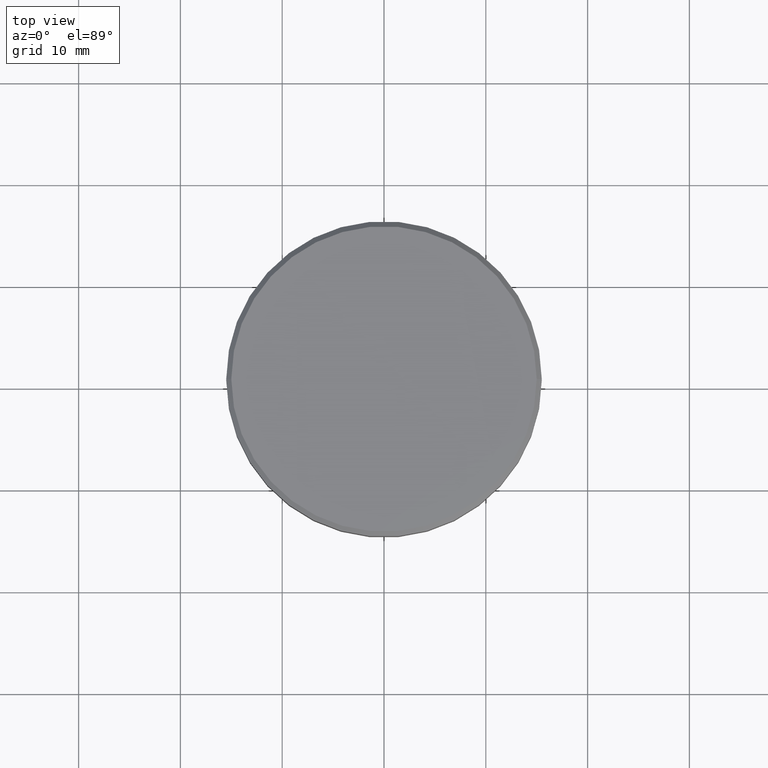
[diagram: clean part render]
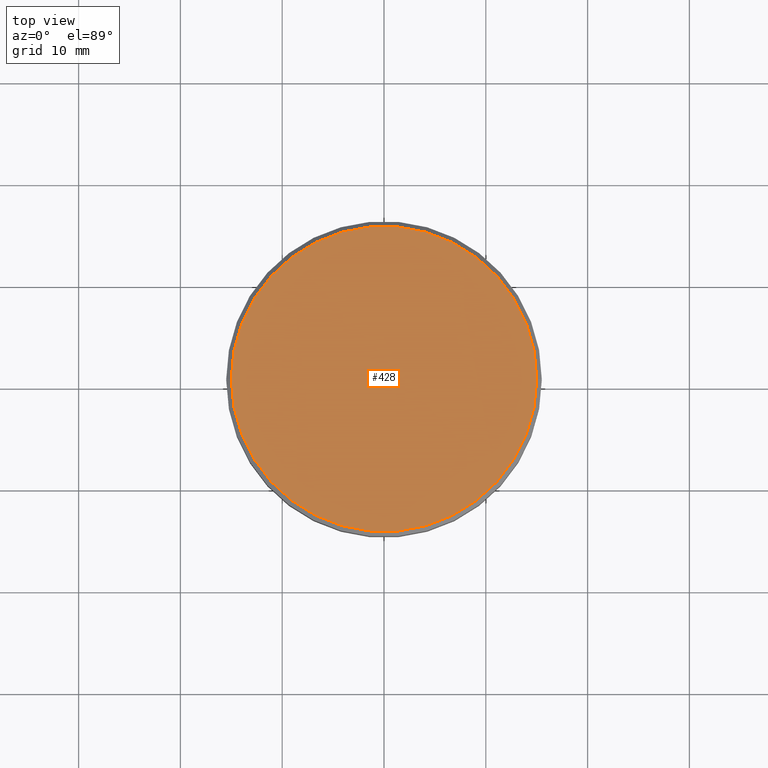
[diagram: same view with one face highlighted and labeled with its STEP entity id]
A machine part, top view. The second image highlights one B-rep face of the part: STEP entity #428.
In plain terms, the highlighted planar face has unit normal (0, -0, 1).
Its self-contained STEP definition (entity closure, byte-faithful):
#64 = EDGE_CURVE ( 'NONE', #489, #878, #307, .T. ) ;
#159 = AXIS2_PLACEMENT_3D ( 'NONE', #750, #823, #639 ) ;
#178 = CIRCLE ( 'NONE', #331, 15.00000000000001421 ) ;
#307 = CIRCLE ( 'NONE', #1137, 15.00000000000001421 ) ;
#331 = AXIS2_PLACEMENT_3D ( 'NONE', #1165, #338, #713 ) ;
#338 = DIRECTION ( 'NONE',  ( -0.000000000000000000, -0.000000000000000000, 1.000000000000000000 ) ) ;
#395 = EDGE_LOOP ( 'NONE', ( #640, #566 ) ) ;
#409 = EDGE_CURVE ( 'NONE', #878, #489, #178, .T. ) ;
#428 = ADVANCED_FACE ( 'NONE', ( #904 ), #1182, .T. ) ;
#489 = VERTEX_POINT ( 'NONE', #650 ) ;
#505 = CARTESIAN_POINT ( 'NONE',  ( -15.00000000000001421, 0.000000000000000000, 0.000000000000000000 ) ) ;
#566 = ORIENTED_EDGE ( 'NONE', *, *, #64, .T. ) ;
#639 = DIRECTION ( 'NONE',  ( 1.000000000000000000, 0.000000000000000000, 0.000000000000000000 ) ) ;
#640 = ORIENTED_EDGE ( 'NONE', *, *, #409, .T. ) ;
#650 = CARTESIAN_POINT ( 'NONE',  ( 15.00000000000001421, 1.867586368699714559E-15, 0.000000000000000000 ) ) ;
#713 = DIRECTION ( 'NONE',  ( 1.000000000000000000, 0.000000000000000000, 0.000000000000000000 ) ) ;
#750 = CARTESIAN_POINT ( 'NONE',  ( 0.000000000000000000, 0.000000000000000000, 0.000000000000000000 ) ) ;
#780 = CARTESIAN_POINT ( 'NONE',  ( 0.000000000000000000, 0.000000000000000000, 0.000000000000000000 ) ) ;
#823 = DIRECTION ( 'NONE',  ( 0.000000000000000000, -0.000000000000000000, 1.000000000000000000 ) ) ;
#878 = VERTEX_POINT ( 'NONE', #505 ) ;
#882 = DIRECTION ( 'NONE',  ( 1.000000000000000000, 0.000000000000000000, 0.000000000000000000 ) ) ;
#904 = FACE_OUTER_BOUND ( 'NONE', #395, .T. ) ;
#1137 = AXIS2_PLACEMENT_3D ( 'NONE', #780, #1155, #882 ) ;
#1155 = DIRECTION ( 'NONE',  ( -0.000000000000000000, -0.000000000000000000, 1.000000000000000000 ) ) ;
#1165 = CARTESIAN_POINT ( 'NONE',  ( 0.000000000000000000, 0.000000000000000000, 0.000000000000000000 ) ) ;
#1182 = PLANE ( 'NONE',  #159 ) ;